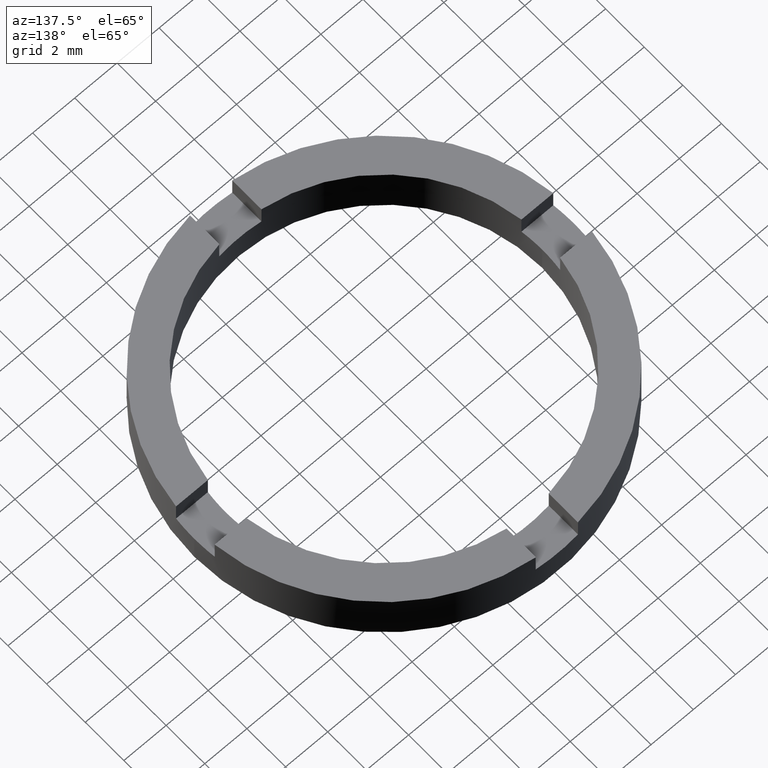
[diagram: clean part render]
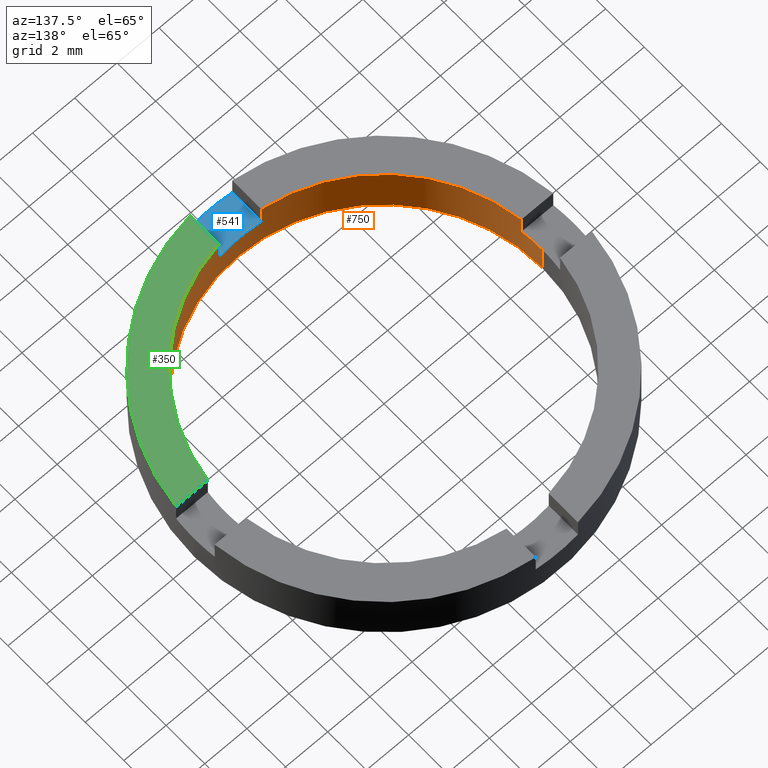
[diagram: same view with three faces highlighted in distinct colors, each labeled with its STEP entity id]
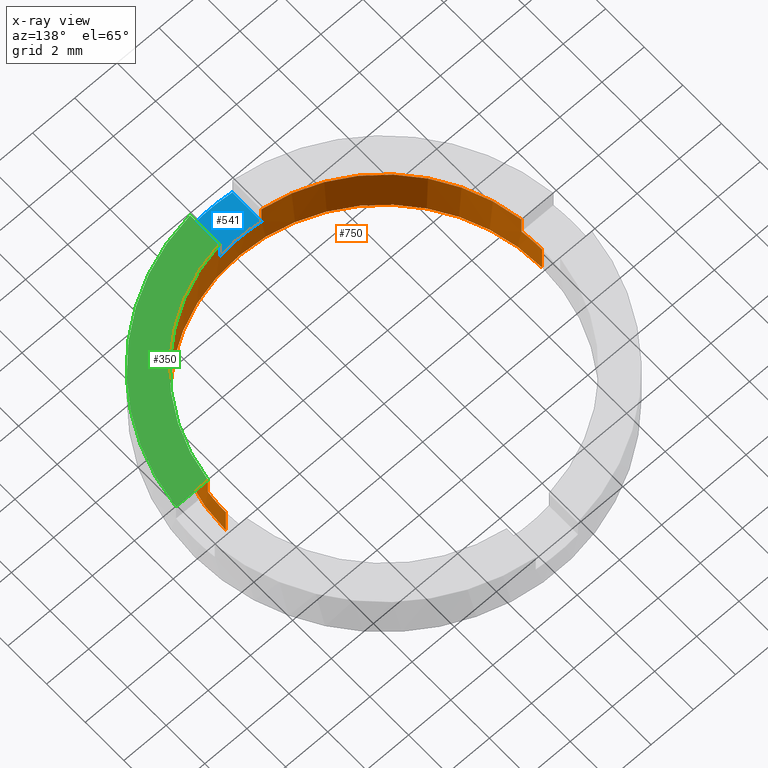
[diagram: x-ray of the same camera — body ghosted, the three highlighted faces saturated]
A machine part, auxiliary view with three faces highlighted in distinct colors.
The next image is the same camera in x-ray (body ghosted, the three faces saturated) — at least one of them is partly hidden behind the body in this view.
Their STEP definitions:

[orange] entity #750 — the highlighted cylindrical surface (partial cylindrical patch) has radius 7.5 mm, axis along (-0, -0, -1).
#2 = CARTESIAN_POINT ( 'NONE',  ( 0.000000000000000000, 0.000000000000000000, 1.500000000000000000 ) ) ;
#6 = AXIS2_PLACEMENT_3D ( 'NONE', #539, #782, #107 ) ;
#19 = EDGE_CURVE ( 'NONE', #147, #575, #700, .T. ) ;
#21 = CARTESIAN_POINT ( 'NONE',  ( -7.500000000000000000, 0.000000000000000000, 1.500000000000000000 ) ) ;
#30 = CARTESIAN_POINT ( 'NONE',  ( -7.433034373659256566, -0.9999999999999733546, 1.500000000000000000 ) ) ;
#31 = DIRECTION ( 'NONE',  ( 1.000000000000000000, 0.000000000000000000, 0.000000000000000000 ) ) ;
#41 = EDGE_CURVE ( 'NONE', #58, #157, #703, .T. ) ;
#42 = VERTEX_POINT ( 'NONE', #366 ) ;
#46 = ORIENTED_EDGE ( 'NONE', *, *, #233, .F. ) ;
#50 = VERTEX_POINT ( 'NONE', #151 ) ;
#52 = AXIS2_PLACEMENT_3D ( 'NONE', #63, #385, #248 ) ;
#57 = VERTEX_POINT ( 'NONE', #461 ) ;
#58 = VERTEX_POINT ( 'NONE', #222 ) ;
#63 = CARTESIAN_POINT ( 'NONE',  ( 0.000000000000000000, 0.000000000000000000, 0.000000000000000000 ) ) ;
#66 = CARTESIAN_POINT ( 'NONE',  ( 7.500000000000000000, 9.184850993605147944E-16, 0.000000000000000000 ) ) ;
#69 = AXIS2_PLACEMENT_3D ( 'NONE', #537, #439, #283 ) ;
#72 = CARTESIAN_POINT ( 'NONE',  ( 0.000000000000000000, 0.000000000000000000, 1.500000000000000000 ) ) ;
#92 = ORIENTED_EDGE ( 'NONE', *, *, #240, .T. ) ;
#98 = EDGE_CURVE ( 'NONE', #42, #307, #695, .T. ) ;
#107 = DIRECTION ( 'NONE',  ( 1.000000000000000000, 0.000000000000000000, 0.000000000000000000 ) ) ;
#135 = CYLINDRICAL_SURFACE ( 'NONE', #256, 7.500000000000000000 ) ;
#139 = DIRECTION ( 'NONE',  ( 0.000000000000000000, -0.000000000000000000, -1.000000000000000000 ) ) ;
#142 = EDGE_CURVE ( 'NONE', #50, #157, #454, .T. ) ;
#143 = DIRECTION ( 'NONE',  ( -0.000000000000000000, -0.000000000000000000, 1.000000000000000000 ) ) ;
#147 = VERTEX_POINT ( 'NONE', #624 ) ;
#151 = CARTESIAN_POINT ( 'NONE',  ( 7.500000000000000000, 9.184850993605147944E-16, 1.500000000000000000 ) ) ;
#156 = CARTESIAN_POINT ( 'NONE',  ( -0.9999999999999986677, -7.433034373659253013, 2.500000000000000000 ) ) ;
#157 = VERTEX_POINT ( 'NONE', #66 ) ;
#169 = VERTEX_POINT ( 'NONE', #156 ) ;
#173 = ORIENTED_EDGE ( 'NONE', *, *, #576, .T. ) ;
#176 = VERTEX_POINT ( 'NONE', #645 ) ;
#187 = CARTESIAN_POINT ( 'NONE',  ( -0.9999999999999986677, -7.433034373659253013, 1.500000000000000000 ) ) ;
#188 = LINE ( 'NONE', #229, #441 ) ;
#190 = LINE ( 'NONE', #521, #453 ) ;
#201 = CIRCLE ( 'NONE', #6, 7.500000000000000000 ) ;
#207 = EDGE_CURVE ( 'NONE', #718, #176, #188, .T. ) ;
#215 = DIRECTION ( 'NONE',  ( 1.000000000000000000, 1.065814103640150279E-14, 0.000000000000000000 ) ) ;
#222 = CARTESIAN_POINT ( 'NONE',  ( -7.500000000000000000, 0.000000000000000000, 0.000000000000000000 ) ) ;
#229 = CARTESIAN_POINT ( 'NONE',  ( 7.433034373659249461, -1.000000000000028866, 1.500000000000000000 ) ) ;
#233 = EDGE_CURVE ( 'NONE', #575, #169, #720, .T. ) ;
#240 = EDGE_CURVE ( 'NONE', #147, #300, #190, .T. ) ;
#248 = DIRECTION ( 'NONE',  ( 1.000000000000000000, 0.000000000000000000, 0.000000000000000000 ) ) ;
#251 = DIRECTION ( 'NONE',  ( 0.000000000000000000, -0.000000000000000000, -1.000000000000000000 ) ) ;
#256 = AXIS2_PLACEMENT_3D ( 'NONE', #499, #540, #552 ) ;
#269 = AXIS2_PLACEMENT_3D ( 'NONE', #2, #251, #289 ) ;
#273 = CARTESIAN_POINT ( 'NONE',  ( 0.000000000000000000, 0.000000000000000000, 2.500000000000000000 ) ) ;
#283 = DIRECTION ( 'NONE',  ( 1.000000000000000000, 0.000000000000000000, 0.000000000000000000 ) ) ;
#286 = EDGE_CURVE ( 'NONE', #300, #176, #201, .T. ) ;
#289 = DIRECTION ( 'NONE',  ( 1.000000000000000000, 0.000000000000000000, 0.000000000000000000 ) ) ;
#300 = VERTEX_POINT ( 'NONE', #324 ) ;
#301 = AXIS2_PLACEMENT_3D ( 'NONE', #72, #139, #215 ) ;
#307 = VERTEX_POINT ( 'NONE', #21 ) ;
#310 = ORIENTED_EDGE ( 'NONE', *, *, #343, .T. ) ;
#320 = ORIENTED_EDGE ( 'NONE', *, *, #207, .F. ) ;
#324 = CARTESIAN_POINT ( 'NONE',  ( 1.000000000000001332, -7.433034373659253013, 2.500000000000000000 ) ) ;
#325 = ORIENTED_EDGE ( 'NONE', *, *, #41, .F. ) ;
#334 = ORIENTED_EDGE ( 'NONE', *, *, #19, .F. ) ;
#343 = EDGE_CURVE ( 'NONE', #57, #169, #462, .T. ) ;
#344 = ORIENTED_EDGE ( 'NONE', *, *, #98, .F. ) ;
#362 = LINE ( 'NONE', #30, #398 ) ;
#366 = CARTESIAN_POINT ( 'NONE',  ( -7.433034373659256566, -0.9999999999999733546, 1.500000000000000000 ) ) ;
#385 = DIRECTION ( 'NONE',  ( 0.000000000000000000, 0.000000000000000000, 1.000000000000000000 ) ) ;
#391 = DIRECTION ( 'NONE',  ( -0.000000000000000000, -0.000000000000000000, 1.000000000000000000 ) ) ;
#398 = VECTOR ( 'NONE', #742, 1000.000000000000000 ) ;
#400 = CARTESIAN_POINT ( 'NONE',  ( 7.500000000000000000, 9.184850993605147944E-16, 2.500000000000000000 ) ) ;
#410 = DIRECTION ( 'NONE',  ( 0.000000000000000000, 0.000000000000000000, 1.000000000000000000 ) ) ;
#414 = ORIENTED_EDGE ( 'NONE', *, *, #286, .T. ) ;
#434 = EDGE_CURVE ( 'NONE', #307, #58, #457, .T. ) ;
#439 = DIRECTION ( 'NONE',  ( 0.000000000000000000, -0.000000000000000000, -1.000000000000000000 ) ) ;
#441 = VECTOR ( 'NONE', #391, 1000.000000000000000 ) ;
#444 = VECTOR ( 'NONE', #520, 1000.000000000000000 ) ;
#453 = VECTOR ( 'NONE', #752, 1000.000000000000000 ) ;
#454 = LINE ( 'NONE', #400, #444 ) ;
#457 = LINE ( 'NONE', #699, #726 ) ;
#461 = CARTESIAN_POINT ( 'NONE',  ( -7.433034373659256566, -0.9999999999999733546, 2.500000000000000000 ) ) ;
#462 = CIRCLE ( 'NONE', #497, 7.500000000000000000 ) ;
#477 = DIRECTION ( 'NONE',  ( -0.000000000000000000, -0.000000000000000000, -1.000000000000000000 ) ) ;
#479 = CARTESIAN_POINT ( 'NONE',  ( -0.9999999999999986677, -7.433034373659253013, 1.500000000000000000 ) ) ;
#497 = AXIS2_PLACEMENT_3D ( 'NONE', #273, #410, #31 ) ;
#499 = CARTESIAN_POINT ( 'NONE',  ( 0.000000000000000000, 0.000000000000000000, 2.500000000000000000 ) ) ;
#520 = DIRECTION ( 'NONE',  ( -0.000000000000000000, -0.000000000000000000, -1.000000000000000000 ) ) ;
#521 = CARTESIAN_POINT ( 'NONE',  ( 1.000000000000001332, -7.433034373659253013, 1.500000000000000000 ) ) ;
#537 = CARTESIAN_POINT ( 'NONE',  ( 0.000000000000000000, 0.000000000000000000, 1.500000000000000000 ) ) ;
#539 = CARTESIAN_POINT ( 'NONE',  ( 0.000000000000000000, 0.000000000000000000, 2.500000000000000000 ) ) ;
#540 = DIRECTION ( 'NONE',  ( -0.000000000000000000, -0.000000000000000000, -1.000000000000000000 ) ) ;
#552 = DIRECTION ( 'NONE',  ( -1.000000000000000000, 0.000000000000000000, 0.000000000000000000 ) ) ;
#575 = VERTEX_POINT ( 'NONE', #187 ) ;
#576 = EDGE_CURVE ( 'NONE', #42, #57, #362, .T. ) ;
#579 = EDGE_LOOP ( 'NONE', ( #678, #608, #325, #697, #344, #173, #310, #46, #334, #92, #414, #320 ) ) ;
#608 = ORIENTED_EDGE ( 'NONE', *, *, #142, .T. ) ;
#624 = CARTESIAN_POINT ( 'NONE',  ( 1.000000000000001110, -7.433034373659252125, 1.500000000000000000 ) ) ;
#645 = CARTESIAN_POINT ( 'NONE',  ( 7.433034373659249461, -1.000000000000028866, 2.500000000000000000 ) ) ;
#661 = CIRCLE ( 'NONE', #269, 7.500000000000000000 ) ;
#667 = FACE_OUTER_BOUND ( 'NONE', #579, .T. ) ;
#678 = ORIENTED_EDGE ( 'NONE', *, *, #686, .F. ) ;
#686 = EDGE_CURVE ( 'NONE', #50, #718, #661, .T. ) ;
#695 = CIRCLE ( 'NONE', #301, 7.500000000000000000 ) ;
#697 = ORIENTED_EDGE ( 'NONE', *, *, #434, .F. ) ;
#699 = CARTESIAN_POINT ( 'NONE',  ( -7.500000000000000000, 0.000000000000000000, 2.500000000000000000 ) ) ;
#700 = CIRCLE ( 'NONE', #69, 7.500000000000000000 ) ;
#703 = CIRCLE ( 'NONE', #52, 7.500000000000000000 ) ;
#714 = VECTOR ( 'NONE', #143, 1000.000000000000000 ) ;
#718 = VERTEX_POINT ( 'NONE', #763 ) ;
#720 = LINE ( 'NONE', #479, #714 ) ;
#726 = VECTOR ( 'NONE', #477, 1000.000000000000000 ) ;
#742 = DIRECTION ( 'NONE',  ( -0.000000000000000000, -0.000000000000000000, 1.000000000000000000 ) ) ;
#750 = ADVANCED_FACE ( 'NONE', ( #667 ), #135, .F. ) ;
#752 = DIRECTION ( 'NONE',  ( -0.000000000000000000, -0.000000000000000000, 1.000000000000000000 ) ) ;
#763 = CARTESIAN_POINT ( 'NONE',  ( 7.433034373659249461, -1.000000000000028866, 1.500000000000000000 ) ) ;
#782 = DIRECTION ( 'NONE',  ( 0.000000000000000000, 0.000000000000000000, 1.000000000000000000 ) ) ;

[blue] entity #541 — the highlighted planar face has unit normal (-0, 0, 1).
#19 = EDGE_CURVE ( 'NONE', #147, #575, #700, .T. ) ;
#69 = AXIS2_PLACEMENT_3D ( 'NONE', #537, #439, #283 ) ;
#91 = DIRECTION ( 'NONE',  ( -0.000000000000000000, 0.000000000000000000, 1.000000000000000000 ) ) ;
#147 = VERTEX_POINT ( 'NONE', #624 ) ;
#152 = DIRECTION ( 'NONE',  ( 1.000000000000000000, 0.000000000000000000, 0.000000000000000000 ) ) ;
#187 = CARTESIAN_POINT ( 'NONE',  ( -0.9999999999999986677, -7.433034373659253013, 1.500000000000000000 ) ) ;
#234 = CARTESIAN_POINT ( 'NONE',  ( 0.000000000000000000, 0.000000000000000000, 1.500000000000000000 ) ) ;
#246 = EDGE_LOOP ( 'NONE', ( #380, #595, #705, #725 ) ) ;
#262 = DIRECTION ( 'NONE',  ( -0.000000000000000000, 0.000000000000000000, 1.000000000000000000 ) ) ;
#274 = AXIS2_PLACEMENT_3D ( 'NONE', #529, #91, #152 ) ;
#276 = CARTESIAN_POINT ( 'NONE',  ( 1.000000000000001332, 0.000000000000000000, 1.500000000000000000 ) ) ;
#280 = AXIS2_PLACEMENT_3D ( 'NONE', #234, #262, #408 ) ;
#283 = DIRECTION ( 'NONE',  ( 1.000000000000000000, 0.000000000000000000, 0.000000000000000000 ) ) ;
#299 = CARTESIAN_POINT ( 'NONE',  ( -0.9999999999999986677, -8.944271909999157444, 1.500000000000000000 ) ) ;
#376 = CARTESIAN_POINT ( 'NONE',  ( 1.000000000000001332, -8.944271909999157444, 1.500000000000000000 ) ) ;
#379 = FACE_OUTER_BOUND ( 'NONE', #246, .T. ) ;
#380 = ORIENTED_EDGE ( 'NONE', *, *, #458, .F. ) ;
#382 = VECTOR ( 'NONE', #558, 1000.000000000000000 ) ;
#389 = LINE ( 'NONE', #397, #382 ) ;
#397 = CARTESIAN_POINT ( 'NONE',  ( -0.9999999999999986677, 0.000000000000000000, 1.500000000000000000 ) ) ;
#401 = LINE ( 'NONE', #276, #626 ) ;
#408 = DIRECTION ( 'NONE',  ( 1.000000000000000000, 0.000000000000000000, 0.000000000000000000 ) ) ;
#411 = VERTEX_POINT ( 'NONE', #299 ) ;
#436 = VERTEX_POINT ( 'NONE', #376 ) ;
#439 = DIRECTION ( 'NONE',  ( 0.000000000000000000, -0.000000000000000000, -1.000000000000000000 ) ) ;
#458 = EDGE_CURVE ( 'NONE', #411, #575, #389, .T. ) ;
#460 = EDGE_CURVE ( 'NONE', #411, #436, #634, .T. ) ;
#486 = PLANE ( 'NONE',  #274 ) ;
#492 = DIRECTION ( 'NONE',  ( 0.000000000000000000, 1.000000000000000000, -0.000000000000000000 ) ) ;
#529 = CARTESIAN_POINT ( 'NONE',  ( 0.000000000000000000, 0.000000000000000000, 1.500000000000000000 ) ) ;
#537 = CARTESIAN_POINT ( 'NONE',  ( 0.000000000000000000, 0.000000000000000000, 1.500000000000000000 ) ) ;
#541 = ADVANCED_FACE ( 'NONE', ( #379 ), #486, .T. ) ;
#558 = DIRECTION ( 'NONE',  ( 0.000000000000000000, 1.000000000000000000, -0.000000000000000000 ) ) ;
#574 = EDGE_CURVE ( 'NONE', #436, #147, #401, .T. ) ;
#575 = VERTEX_POINT ( 'NONE', #187 ) ;
#595 = ORIENTED_EDGE ( 'NONE', *, *, #460, .T. ) ;
#624 = CARTESIAN_POINT ( 'NONE',  ( 1.000000000000001110, -7.433034373659252125, 1.500000000000000000 ) ) ;
#626 = VECTOR ( 'NONE', #492, 1000.000000000000000 ) ;
#634 = CIRCLE ( 'NONE', #280, 9.000000000000000000 ) ;
#700 = CIRCLE ( 'NONE', #69, 7.500000000000000000 ) ;
#705 = ORIENTED_EDGE ( 'NONE', *, *, #574, .T. ) ;
#725 = ORIENTED_EDGE ( 'NONE', *, *, #19, .T. ) ;

[green] entity #350 — the highlighted planar face has unit normal (0, 0, 1).
#6 = AXIS2_PLACEMENT_3D ( 'NONE', #539, #782, #107 ) ;
#15 = CARTESIAN_POINT ( 'NONE',  ( 0.000000000000000000, 0.000000000000000000, 2.500000000000000000 ) ) ;
#70 = DIRECTION ( 'NONE',  ( 0.000000000000000000, 0.000000000000000000, 1.000000000000000000 ) ) ;
#104 = VERTEX_POINT ( 'NONE', #727 ) ;
#107 = DIRECTION ( 'NONE',  ( 1.000000000000000000, 0.000000000000000000, 0.000000000000000000 ) ) ;
#126 = CIRCLE ( 'NONE', #666, 9.000000000000000000 ) ;
#149 = EDGE_CURVE ( 'NONE', #176, #691, #164, .T. ) ;
#164 = LINE ( 'NONE', #270, #712 ) ;
#176 = VERTEX_POINT ( 'NONE', #645 ) ;
#184 = DIRECTION ( 'NONE',  ( 0.000000000000000000, 0.000000000000000000, 1.000000000000000000 ) ) ;
#189 = CARTESIAN_POINT ( 'NONE',  ( 0.000000000000000000, 0.000000000000000000, 2.500000000000000000 ) ) ;
#196 = DIRECTION ( 'NONE',  ( 1.000000000000000000, 0.000000000000000000, 0.000000000000000000 ) ) ;
#201 = CIRCLE ( 'NONE', #6, 7.500000000000000000 ) ;
#211 = VECTOR ( 'NONE', #734, 1000.000000000000000 ) ;
#249 = EDGE_CURVE ( 'NONE', #104, #300, #728, .T. ) ;
#270 = CARTESIAN_POINT ( 'NONE',  ( -3.734474149672297082E-15, -1.000000000000001110, 2.500000000000000000 ) ) ;
#277 = PLANE ( 'NONE',  #417 ) ;
#286 = EDGE_CURVE ( 'NONE', #300, #176, #201, .T. ) ;
#300 = VERTEX_POINT ( 'NONE', #324 ) ;
#312 = ORIENTED_EDGE ( 'NONE', *, *, #149, .F. ) ;
#324 = CARTESIAN_POINT ( 'NONE',  ( 1.000000000000001332, -7.433034373659253013, 2.500000000000000000 ) ) ;
#328 = ORIENTED_EDGE ( 'NONE', *, *, #743, .T. ) ;
#350 = ADVANCED_FACE ( 'NONE', ( #463 ), #277, .T. ) ;
#372 = CARTESIAN_POINT ( 'NONE',  ( 8.944271909999153891, -1.000000000000034417, 2.500000000000000000 ) ) ;
#373 = ORIENTED_EDGE ( 'NONE', *, *, #286, .F. ) ;
#406 = CARTESIAN_POINT ( 'NONE',  ( 1.000000000000001332, 0.000000000000000000, 2.500000000000000000 ) ) ;
#417 = AXIS2_PLACEMENT_3D ( 'NONE', #189, #184, #491 ) ;
#455 = EDGE_LOOP ( 'NONE', ( #312, #373, #749, #328 ) ) ;
#463 = FACE_OUTER_BOUND ( 'NONE', #455, .T. ) ;
#491 = DIRECTION ( 'NONE',  ( 1.000000000000000000, 0.000000000000000000, -0.000000000000000000 ) ) ;
#539 = CARTESIAN_POINT ( 'NONE',  ( 0.000000000000000000, 0.000000000000000000, 2.500000000000000000 ) ) ;
#645 = CARTESIAN_POINT ( 'NONE',  ( 7.433034373659249461, -1.000000000000028866, 2.500000000000000000 ) ) ;
#666 = AXIS2_PLACEMENT_3D ( 'NONE', #15, #70, #196 ) ;
#691 = VERTEX_POINT ( 'NONE', #372 ) ;
#712 = VECTOR ( 'NONE', #771, 1000.000000000000000 ) ;
#727 = CARTESIAN_POINT ( 'NONE',  ( 1.000000000000001332, -8.944271909999157444, 2.500000000000000000 ) ) ;
#728 = LINE ( 'NONE', #406, #211 ) ;
#734 = DIRECTION ( 'NONE',  ( 0.000000000000000000, 1.000000000000000000, -0.000000000000000000 ) ) ;
#743 = EDGE_CURVE ( 'NONE', #104, #691, #126, .T. ) ;
#749 = ORIENTED_EDGE ( 'NONE', *, *, #249, .F. ) ;
#771 = DIRECTION ( 'NONE',  ( 1.000000000000000000, -3.734474149672292349E-15, 0.000000000000000000 ) ) ;
#782 = DIRECTION ( 'NONE',  ( 0.000000000000000000, 0.000000000000000000, 1.000000000000000000 ) ) ;